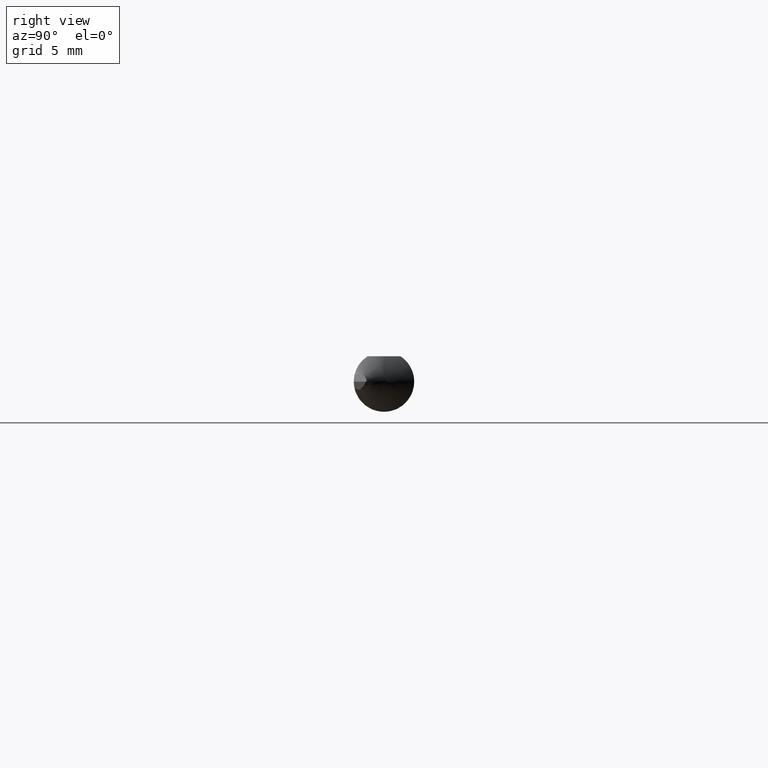
[diagram: clean part render]
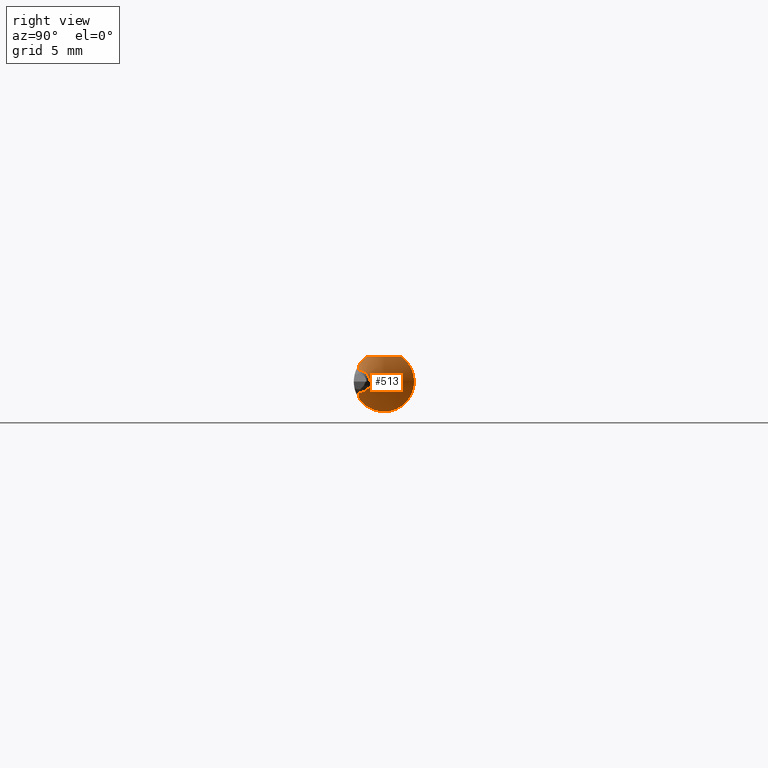
[diagram: same view with one face highlighted and labeled with its STEP entity id]
A machine part, right view. The second image highlights one B-rep face of the part: STEP entity #513.
In plain terms, the highlighted conical surface has half-angle 45 deg.
Its self-contained STEP definition (entity closure, byte-faithful):
#19 = VERTEX_POINT ( 'NONE', #42 ) ;
#21 = CARTESIAN_POINT ( 'NONE',  ( 1.273920643488890780, 0.05804728439778031324, -0.02331046180152182914 ) ) ;
#22 = CARTESIAN_POINT ( 'NONE',  ( 1.325903638438954646, -0.02116583655497123601, 0.05234999999999997988 ) ) ;
#31 = CARTESIAN_POINT ( 'NONE',  ( 1.328966724932452825, -0.02737628946790733944, 0.05234999999999997294 ) ) ;
#38 = CARTESIAN_POINT ( 'NONE',  ( 1.320447246675642283, -0.02178334940610882065, -0.05901081408407340273 ) ) ;
#42 = CARTESIAN_POINT ( 'NONE',  ( 1.363322330470336130, -0.05235000000000002152, 0.02332233047033637624 ) ) ;
#44 = ORIENTED_EDGE ( 'NONE', *, *, #268, .F. ) ;
#55 = CARTESIAN_POINT ( 'NONE',  ( 1.363322330470336130, -0.05235000000000002152, -0.02332233047033637624 ) ) ;
#91 = LINE ( 'NONE', #666, #863 ) ;
#95 = CARTESIAN_POINT ( 'NONE',  ( 1.273115893632432716, 0.05979447392878621537, -0.01839309767483820329 ) ) ;
#96 = CARTESIAN_POINT ( 'NONE',  ( 1.295285513869413485, 0.01635063848551787657, -0.06033004519805543892 ) ) ;
#111 = CARTESIAN_POINT ( 'NONE',  ( 1.339530206641906362, -0.04249308427292688983, -0.04632116021825222890 ) ) ;
#117 = CARTESIAN_POINT ( 'NONE',  ( 1.300398987895751590, 0.007676544554126420519, -0.06203328458329463585 ) ) ;
#126 = CARTESIAN_POINT ( 'NONE',  ( 1.271944660940673710, -0.05235000000000001458, 0.000000000000000000 ) ) ;
#131 = CARTESIAN_POINT ( 'NONE',  ( 1.331127731721387430, -0.03386738844375222768, 0.05234999999999997294 ) ) ;
#134 = EDGE_CURVE ( 'NONE', #736, #776, #799, .T. ) ;
#164 = AXIS2_PLACEMENT_3D ( 'NONE', #126, #855, #716 ) ;
#165 = EDGE_CURVE ( 'NONE', #515, #840, #215, .T. ) ;
#174 = CARTESIAN_POINT ( 'NONE',  ( 1.331127731721387430, -0.03386738844375222768, 0.05234999999999997294 ) ) ;
#183 = ORIENTED_EDGE ( 'NONE', *, *, #870, .T. ) ;
#215 = LINE ( 'NONE', #428, #557 ) ;
#230 = DIRECTION ( 'NONE',  ( -0.7071067811865425767, 0.000000000000000000, 0.7071067811865524577 ) ) ;
#232 = CARTESIAN_POINT ( 'NONE',  ( 1.281611693946026698, 0.04189604565662205515, 0.04715592831881575825 ) ) ;
#246 = B_SPLINE_CURVE_WITH_KNOTS ( 'NONE', 3,
 ( #474, #264, #111, #404, #38, #625, #479, #773, #117, #96, #387, #318, #386, #676, #812, #21, #95, #817, #894, #827, #607, #885, #232, #463 ),
 .UNSPECIFIED., .F., .F.,
 ( 4, 2, 2, 2, 2, 2, 2, 2, 2, 2, 2, 4 ),
 ( 0.0004181303876200363930, 0.001201417384251923445, 0.001984704380883810931, 0.002376347879199748169, 0.002767991377515685407, 0.003159634875831623078, 0.003551278374147560750, 0.004334565370779443899, 0.004726208869095386775, 0.005117852367411327916, 0.005901139364043211932, 0.006684426360675095949 ),
 .UNSPECIFIED. ) ;
#250 = VERTEX_POINT ( 'NONE', #452 ) ;
#264 = CARTESIAN_POINT ( 'NONE',  ( 1.346165295145469232, -0.04807243733824484444, -0.04047936579520317046 ) ) ;
#268 = EDGE_CURVE ( 'NONE', #19, #776, #91, .T. ) ;
#280 = CARTESIAN_POINT ( 'NONE',  ( 1.352777272496920480, -0.05235000000000001458, 0.03386738844375219298 ) ) ;
#285 = ORIENTED_EDGE ( 'NONE', *, *, #165, .T. ) ;
#318 = CARTESIAN_POINT ( 'NONE',  ( 1.288243343854815759, 0.02912554256526329530, -0.05532257426885173884 ) ) ;
#326 = CARTESIAN_POINT ( 'NONE',  ( 1.315224182788650387, -0.003615021247189844494, 0.05234999999999997294 ) ) ;
#362 = CONICAL_SURFACE ( 'NONE', #164, 0.1147000000000000103, 0.7853981633974552734 ) ;
#367 = ORIENTED_EDGE ( 'NONE', *, *, #613, .T. ) ;
#386 = CARTESIAN_POINT ( 'NONE',  ( 1.286084177620281821, 0.03324347811187151197, -0.05295995383883918967 ) ) ;
#387 = CARTESIAN_POINT ( 'NONE',  ( 1.292860658073492042, 0.02065008878837636813, -0.05901235706600572312 ) ) ;
#395 = FACE_OUTER_BOUND ( 'NONE', #448, .T. ) ;
#398 = CARTESIAN_POINT ( 'NONE',  ( 1.352777272496920480, -0.05235000000000001458, 0.03386738844375219298 ) ) ;
#404 = CARTESIAN_POINT ( 'NONE',  ( 1.326762634085469683, -0.02944546883437135915, -0.05553626256883986700 ) ) ;
#428 = CARTESIAN_POINT ( 'NONE',  ( 1.271944660940673710, -0.05235000000000000070, -0.1147000000000000103 ) ) ;
#435 = CARTESIAN_POINT ( 'NONE',  ( 1.363322330470336130, -0.05235000000000001458, 0.000000000000000000 ) ) ;
#448 = EDGE_LOOP ( 'NONE', ( #367, #285, #183, #718, #592, #44 ) ) ;
#452 = CARTESIAN_POINT ( 'NONE',  ( 1.285778608326025862, 0.03386738844375224849, 0.05234999999999997294 ) ) ;
#463 = CARTESIAN_POINT ( 'NONE',  ( 1.285778608326025862, 0.03386738844375224849, 0.05234999999999997294 ) ) ;
#474 = CARTESIAN_POINT ( 'NONE',  ( 1.352777272496920480, -0.05235000000000000764, -0.03386738844375219298 ) ) ;
#479 = CARTESIAN_POINT ( 'NONE',  ( 1.308734136439523743, -0.005404829685293316768, -0.06226616800050831929 ) ) ;
#485 = CIRCLE ( 'NONE', #591, 0.02332233047033628950 ) ;
#513 = ADVANCED_FACE ( 'NONE', ( #395 ), #362, .T. ) ;
#515 = VERTEX_POINT ( 'NONE', #55 ) ;
#545 = CARTESIAN_POINT ( 'NONE',  ( 1.294639298171978536, 0.02350123349129881051, 0.05234999999999997294 ) ) ;
#557 = VECTOR ( 'NONE', #944, 39.37007874015748143 ) ;
#583 = B_SPLINE_CURVE_WITH_KNOTS ( 'NONE', 3,
 ( #174, #31, #22, #678, #326, #901, #545, #612 ),
 .UNSPECIFIED., .F., .F.,
 ( 4, 2, 2, 4 ),
 ( 0.001839256232207844800, 0.002352703369855394834, 0.002866150507502944651, 0.003893044782798044286 ),
 .UNSPECIFIED. ) ;
#591 = AXIS2_PLACEMENT_3D ( 'NONE', #435, #723, #938 ) ;
#592 = ORIENTED_EDGE ( 'NONE', *, *, #134, .T. ) ;
#607 = CARTESIAN_POINT ( 'NONE',  ( 1.273449894689599349, 0.05901934636845062448, 0.02249102507624298891 ) ) ;
#612 = CARTESIAN_POINT ( 'NONE',  ( 1.285778608326025862, 0.03386738844375224849, 0.05234999999999997294 ) ) ;
#613 = EDGE_CURVE ( 'NONE', #19, #515, #485, .T. ) ;
#625 = CARTESIAN_POINT ( 'NONE',  ( 1.311602417059390513, -0.009602664449007329919, -0.06174648437792384925 ) ) ;
#666 = CARTESIAN_POINT ( 'NONE',  ( 1.271944660940673710, -0.05235000000000001458, 0.1147000000000000103 ) ) ;
#676 = CARTESIAN_POINT ( 'NONE',  ( 1.280256414253380770, 0.04465443594961692603, -0.04453039456783860345 ) ) ;
#678 = CARTESIAN_POINT ( 'NONE',  ( 1.319027108239479107, -0.009278969497925400323, 0.05234999999999998682 ) ) ;
#716 = DIRECTION ( 'NONE',  ( 0.000000000000000000, 0.000000000000000000, 1.000000000000000000 ) ) ;
#718 = ORIENTED_EDGE ( 'NONE', *, *, #842, .F. ) ;
#723 = DIRECTION ( 'NONE',  ( -1.000000000000000000, -0.000000000000000000, -0.000000000000000000 ) ) ;
#734 = CARTESIAN_POINT ( 'NONE',  ( 1.331127731721387430, -0.03386738844375222768, 0.05234999999999997294 ) ) ;
#736 = VERTEX_POINT ( 'NONE', #734 ) ;
#773 = CARTESIAN_POINT ( 'NONE',  ( 1.303116131065930938, 0.003257686790270800277, -0.06241534537412294498 ) ) ;
#776 = VERTEX_POINT ( 'NONE', #398 ) ;
#799 = B_SPLINE_CURVE_WITH_KNOTS ( 'NONE', 3,
 ( #131, #868, #932, #280 ),
 .UNSPECIFIED., .F., .F.,
 ( 4, 4 ),
 ( 4.636622646634427029E-07, 0.0008625561007049493707 ),
 .UNSPECIFIED. ) ;
#812 = CARTESIAN_POINT ( 'NONE',  ( 1.277079109287525993, 0.05130975523370769759, -0.03682663355894738588 ) ) ;
#817 = CARTESIAN_POINT ( 'NONE',  ( 1.272106762947702530, 0.06199265033871646097, -0.008402169867246751106 ) ) ;
#827 = CARTESIAN_POINT ( 'NONE',  ( 1.272109881791062991, 0.06198804123523020404, 0.01233068805707061497 ) ) ;
#828 = CARTESIAN_POINT ( 'NONE',  ( 1.352777272496920480, -0.05235000000000000764, -0.03386738844375219298 ) ) ;
#840 = VERTEX_POINT ( 'NONE', #828 ) ;
#842 = EDGE_CURVE ( 'NONE', #736, #250, #583, .T. ) ;
#855 = DIRECTION ( 'NONE',  ( -1.000000000000000000, -0.000000000000000000, -0.000000000000000000 ) ) ;
#863 = VECTOR ( 'NONE', #230, 39.37007874015748143 ) ;
#868 = CARTESIAN_POINT ( 'NONE',  ( 1.338241835682736358, -0.04141186229438938160, 0.04746916663795109487 ) ) ;
#870 = EDGE_CURVE ( 'NONE', #840, #250, #246, .T. ) ;
#885 = CARTESIAN_POINT ( 'NONE',  ( 1.278218350145432058, 0.04892583888068488540, 0.03994235527057211216 ) ) ;
#894 = CARTESIAN_POINT ( 'NONE',  ( 1.271883796799531119, 0.06248333580746406185, -0.003180472041542468844 ) ) ;
#901 = CARTESIAN_POINT ( 'NONE',  ( 1.303286918736876521, 0.01297177664154522576, 0.05234999999999997988 ) ) ;
#932 = CARTESIAN_POINT ( 'NONE',  ( 1.345416726515329620, -0.04758815721267893595, 0.04122793442534923580 ) ) ;
#938 = DIRECTION ( 'NONE',  ( 0.000000000000000000, 0.000000000000000000, 1.000000000000000000 ) ) ;
#944 = DIRECTION ( 'NONE',  ( -0.7071067811865425767, 8.659560562354993255E-17, -0.7071067811865524577 ) ) ;